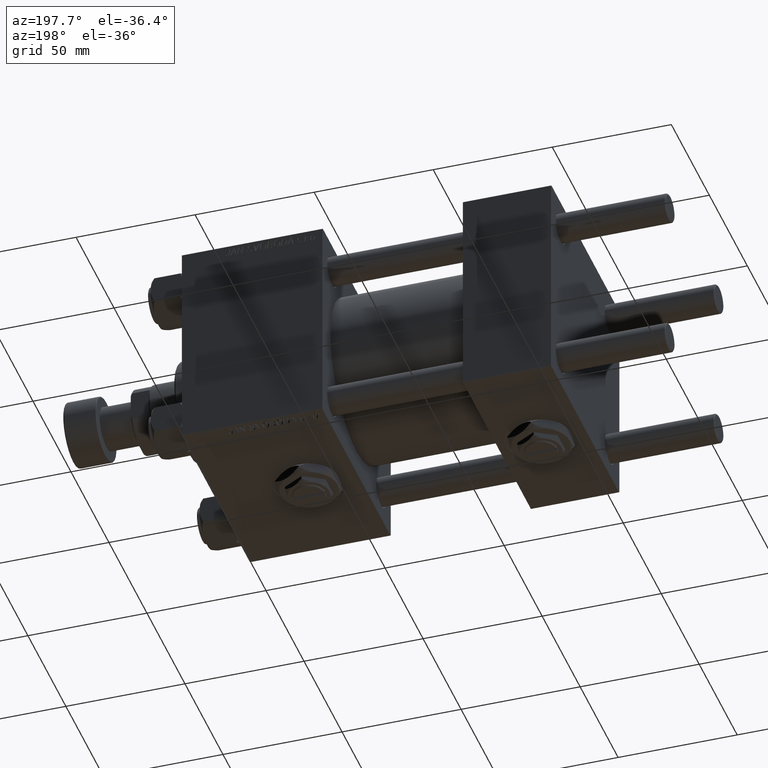
[diagram: clean part render]
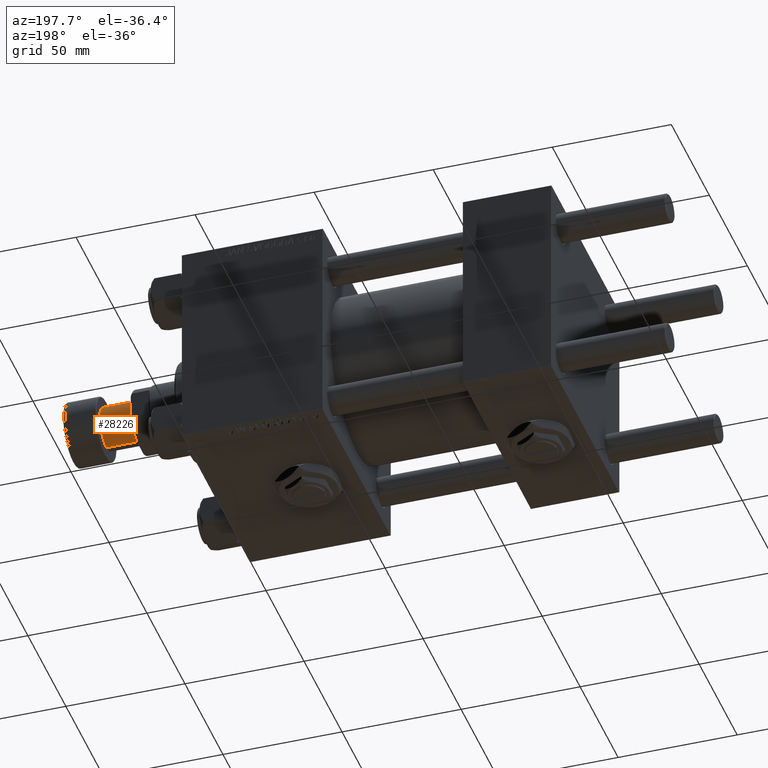
[diagram: same view with one face highlighted and labeled with its STEP entity id]
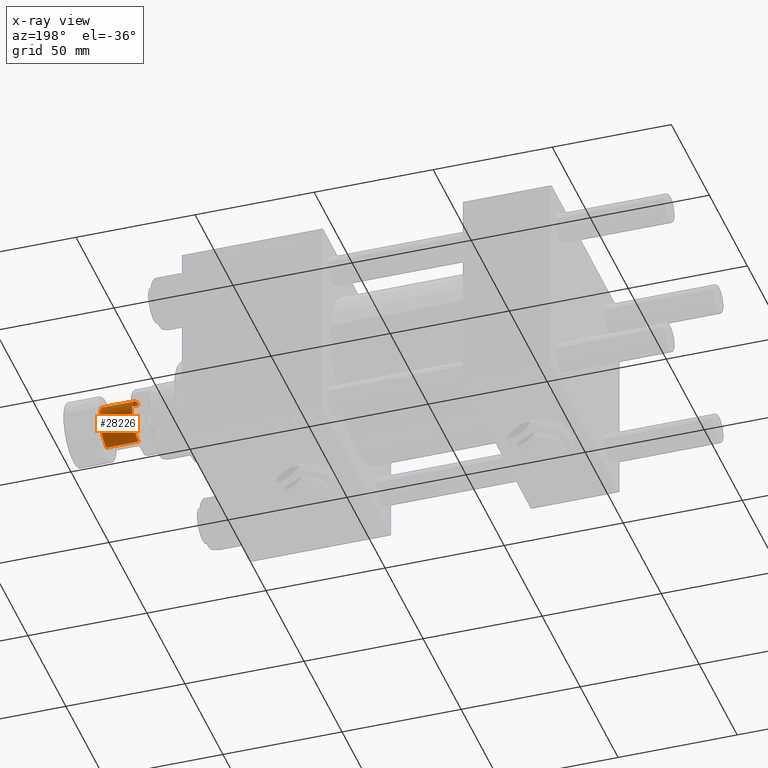
[diagram: x-ray of the same camera — body ghosted, the highlighted face saturated]
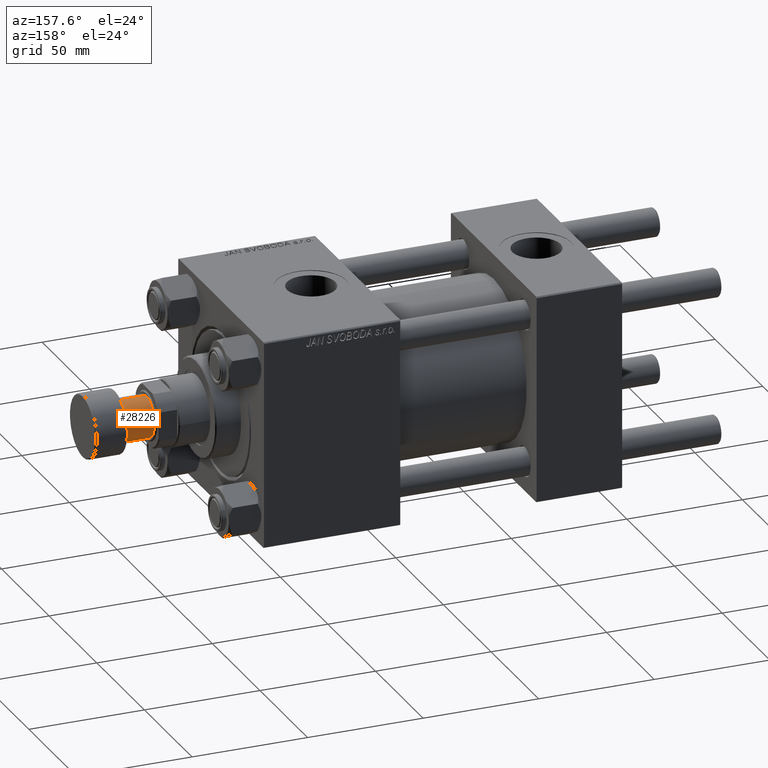
[diagram: same view with one face highlighted and labeled with its STEP entity id]
A machine part, auxiliary view. The second image highlights one B-rep face of the part: STEP entity #28226.
The next image is the same camera in x-ray: the body ghosted, the highlighted face saturated — about 0% of this face is hidden behind the body in this view.
A second angle (auxiliary view) of the same face is appended — the face is thin or edge-on in the first view.
In plain terms, the highlighted cylindrical surface (edge-blend (fillet) strip) has radius 9 mm, axis along (1, 0, 0).
Its self-contained STEP definition (entity closure, byte-faithful):
#111 = ORIENTED_EDGE ( 'NONE', *, *, #35783, .T. ) ;
#1645 = DIRECTION ( 'NONE',  ( 0.000000000000000000, 0.000000000000000000, -1.000000000000000000 ) ) ;
#2143 = VECTOR ( 'NONE', #21749, 1000.000000000000000 ) ;
#2608 = CYLINDRICAL_SURFACE ( 'NONE', #23644, 9.000000000000000000 ) ;
#5618 = CARTESIAN_POINT ( 'NONE',  ( 9.000000000000000000, 0.000000000000000000, -27.50000000000000000 ) ) ;
#5882 = CARTESIAN_POINT ( 'NONE',  ( 0.000000000000000000, 0.000000000000000000, -27.50000000000000000 ) ) ;
#6434 = DIRECTION ( 'NONE',  ( -0.000000000000000000, -0.000000000000000000, 1.000000000000000000 ) ) ;
#6499 = VERTEX_POINT ( 'NONE', #25529 ) ;
#6586 = FACE_OUTER_BOUND ( 'NONE', #8178, .T. ) ;
#6897 = VERTEX_POINT ( 'NONE', #7903 ) ;
#7261 = CARTESIAN_POINT ( 'NONE',  ( 0.000000000000000000, 0.000000000000000000, -14.00000000000000000 ) ) ;
#7903 = CARTESIAN_POINT ( 'NONE',  ( 9.000000000000000000, 0.000000000000000000, -27.50000000000000000 ) ) ;
#8178 = EDGE_LOOP ( 'NONE', ( #41133, #33736, #111, #10145 ) ) ;
#10145 = ORIENTED_EDGE ( 'NONE', *, *, #39479, .F. ) ;
#12856 = EDGE_CURVE ( 'NONE', #36349, #46733, #42664, .T. ) ;
#14276 = DIRECTION ( 'NONE',  ( 1.000000000000000000, 0.000000000000000000, 0.000000000000000000 ) ) ;
#20032 = CIRCLE ( 'NONE', #47054, 9.000000000000000000 ) ;
#21422 = AXIS2_PLACEMENT_3D ( 'NONE', #7261, #39510, #51683 ) ;
#21749 = DIRECTION ( 'NONE',  ( -0.000000000000000000, -0.000000000000000000, 1.000000000000000000 ) ) ;
#22971 = CARTESIAN_POINT ( 'NONE',  ( 0.000000000000000000, 0.000000000000000000, -27.50000000000000000 ) ) ;
#23331 = CARTESIAN_POINT ( 'NONE',  ( -9.000000000000000000, 1.102182119232617714E-15, -27.50000000000000000 ) ) ;
#23644 = AXIS2_PLACEMENT_3D ( 'NONE', #22971, #50229, #14276 ) ;
#25529 = CARTESIAN_POINT ( 'NONE',  ( 9.000000000000000000, 0.000000000000000000, -14.00000000000000000 ) ) ;
#28226 = ADVANCED_FACE ( 'NONE', ( #6586 ), #2608, .T. ) ;
#33736 = ORIENTED_EDGE ( 'NONE', *, *, #12856, .T. ) ;
#35783 = EDGE_CURVE ( 'NONE', #46733, #6499, #36611, .T. ) ;
#36349 = VERTEX_POINT ( 'NONE', #50195 ) ;
#36611 = CIRCLE ( 'NONE', #21422, 9.000000000000000000 ) ;
#37877 = DIRECTION ( 'NONE',  ( -1.000000000000000000, 0.000000000000000000, 0.000000000000000000 ) ) ;
#39479 = EDGE_CURVE ( 'NONE', #6897, #6499, #41848, .T. ) ;
#39510 = DIRECTION ( 'NONE',  ( 0.000000000000000000, 0.000000000000000000, -1.000000000000000000 ) ) ;
#41133 = ORIENTED_EDGE ( 'NONE', *, *, #43841, .F. ) ;
#41848 = LINE ( 'NONE', #5618, #2143 ) ;
#42615 = VECTOR ( 'NONE', #6434, 1000.000000000000000 ) ;
#42664 = LINE ( 'NONE', #23331, #42615 ) ;
#43841 = EDGE_CURVE ( 'NONE', #36349, #6897, #20032, .T. ) ;
#46733 = VERTEX_POINT ( 'NONE', #51334 ) ;
#47054 = AXIS2_PLACEMENT_3D ( 'NONE', #5882, #1645, #37877 ) ;
#50195 = CARTESIAN_POINT ( 'NONE',  ( -9.000000000000000000, 1.102182119232617714E-15, -27.50000000000000000 ) ) ;
#50229 = DIRECTION ( 'NONE',  ( -0.000000000000000000, -0.000000000000000000, 1.000000000000000000 ) ) ;
#51334 = CARTESIAN_POINT ( 'NONE',  ( -9.000000000000000000, 1.102182119232617714E-15, -14.00000000000000000 ) ) ;
#51683 = DIRECTION ( 'NONE',  ( -1.000000000000000000, 0.000000000000000000, 0.000000000000000000 ) ) ;